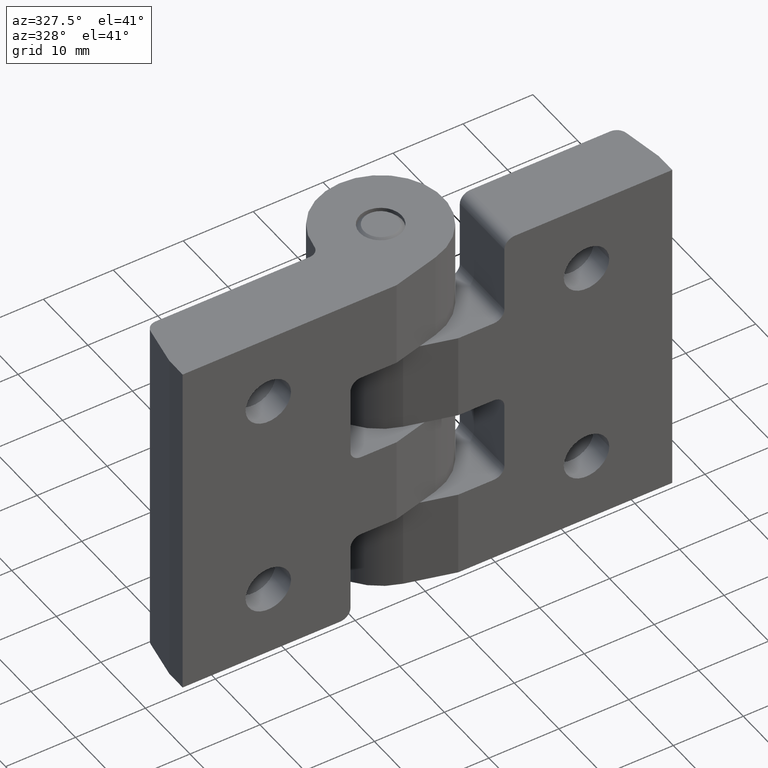
[diagram: clean part render]
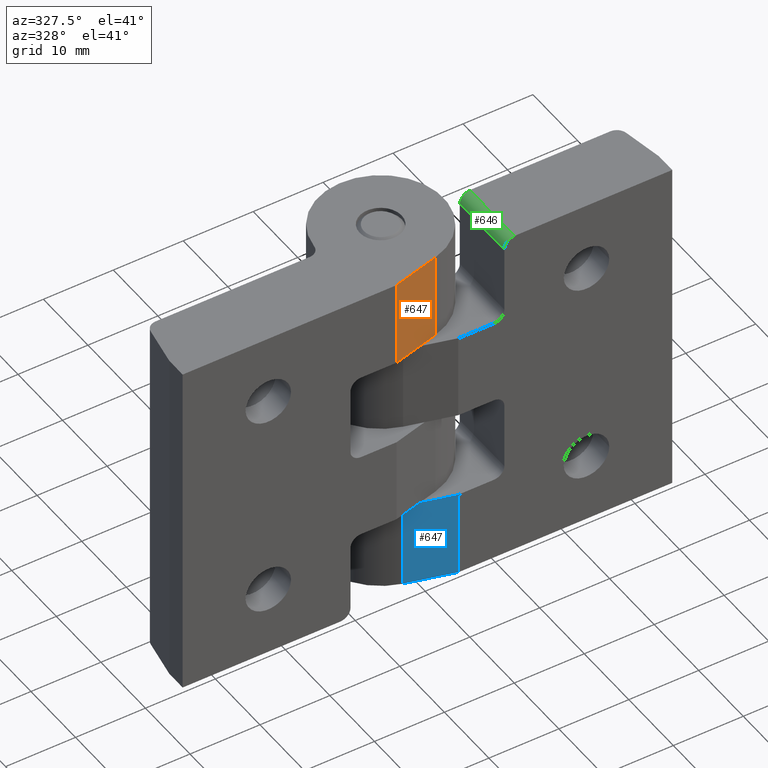
[diagram: same view with three faces highlighted in distinct colors, each labeled with its STEP entity id]
A machine part, auxiliary view with three faces highlighted in distinct colors.
Their STEP definitions:

[orange] entity #647 — the highlighted planar face has unit normal (0.2588, -0.9659, 0).
#44=LINE('',#1079,#92);
#60=LINE('',#1170,#108);
#61=LINE('',#1172,#109);
#62=LINE('',#1173,#110);
#92=VECTOR('',#877,10.);
#108=VECTOR('',#935,10.);
#109=VECTOR('',#936,10.);
#110=VECTOR('',#937,10.);
#175=FACE_OUTER_BOUND('',#215,.T.);
#215=EDGE_LOOP('',(#512,#513,#514,#515));
#297=VERTEX_POINT('',#1071);
#300=VERTEX_POINT('',#1077);
#324=VERTEX_POINT('',#1169);
#325=VERTEX_POINT('',#1171);
#368=EDGE_CURVE('',#297,#300,#44,.T.);
#399=EDGE_CURVE('',#300,#324,#60,.T.);
#400=EDGE_CURVE('',#325,#324,#61,.T.);
#401=EDGE_CURVE('',#297,#325,#62,.T.);
#512=ORIENTED_EDGE('',*,*,#368,.T.);
#513=ORIENTED_EDGE('',*,*,#399,.T.);
#514=ORIENTED_EDGE('',*,*,#400,.F.);
#515=ORIENTED_EDGE('',*,*,#401,.F.);
#620=PLANE('',#777);
#647=ADVANCED_FACE('',(#175),#620,.T.);
#777=AXIS2_PLACEMENT_3D('',#1168,#933,#934);
#877=DIRECTION('',(0.965927000607596,0.25881466244634,0.));
#933=DIRECTION('center_axis',(0.25881466244634,-0.965927000607596,0.));
#934=DIRECTION('ref_axis',(0.965927000607596,0.25881466244634,0.));
#935=DIRECTION('',(0.,0.,1.));
#936=DIRECTION('',(0.965927000607596,0.25881466244634,0.));
#937=DIRECTION('',(0.,0.,1.));
#1071=CARTESIAN_POINT('',(-4.4135432118542,-10.5,12.6));
#1077=CARTESIAN_POINT('',(2.3293174191724,-8.693288729848,12.6));
#1079=CARTESIAN_POINT('',(-5.47393400622916,-10.7841257003218,12.6));
#1168=CARTESIAN_POINT('Origin',(-4.4135432118542,-10.5,0.));
#1169=CARTESIAN_POINT('',(2.3293174191724,-8.693288729848,25.));
#1170=CARTESIAN_POINT('',(2.3293174191724,-8.693288729848,0.));
#1171=CARTESIAN_POINT('',(-4.4135432118542,-10.5,25.));
#1172=CARTESIAN_POINT('',(-4.4135432118542,-10.5,25.));
#1173=CARTESIAN_POINT('',(-4.4135432118542,-10.5,0.));

[blue] entity #647 — the highlighted planar face has unit normal (-0.2588, -0.9659, 0).
#44=LINE('',#1079,#92);
#60=LINE('',#1170,#108);
#61=LINE('',#1172,#109);
#62=LINE('',#1173,#110);
#92=VECTOR('',#877,10.);
#108=VECTOR('',#935,10.);
#109=VECTOR('',#936,10.);
#110=VECTOR('',#937,10.);
#175=FACE_OUTER_BOUND('',#215,.T.);
#215=EDGE_LOOP('',(#512,#513,#514,#515));
#297=VERTEX_POINT('',#1071);
#300=VERTEX_POINT('',#1077);
#324=VERTEX_POINT('',#1169);
#325=VERTEX_POINT('',#1171);
#368=EDGE_CURVE('',#297,#300,#44,.T.);
#399=EDGE_CURVE('',#300,#324,#60,.T.);
#400=EDGE_CURVE('',#325,#324,#61,.T.);
#401=EDGE_CURVE('',#297,#325,#62,.T.);
#512=ORIENTED_EDGE('',*,*,#368,.T.);
#513=ORIENTED_EDGE('',*,*,#399,.T.);
#514=ORIENTED_EDGE('',*,*,#400,.F.);
#515=ORIENTED_EDGE('',*,*,#401,.F.);
#620=PLANE('',#777);
#647=ADVANCED_FACE('',(#175),#620,.T.);
#777=AXIS2_PLACEMENT_3D('',#1168,#933,#934);
#877=DIRECTION('',(0.965927000607596,0.25881466244634,0.));
#933=DIRECTION('center_axis',(0.25881466244634,-0.965927000607596,0.));
#934=DIRECTION('ref_axis',(0.965927000607596,0.25881466244634,0.));
#935=DIRECTION('',(0.,0.,1.));
#936=DIRECTION('',(0.965927000607596,0.25881466244634,0.));
#937=DIRECTION('',(0.,0.,1.));
#1071=CARTESIAN_POINT('',(-4.4135432118542,-10.5,12.6));
#1077=CARTESIAN_POINT('',(2.3293174191724,-8.693288729848,12.6));
#1079=CARTESIAN_POINT('',(-5.47393400622916,-10.7841257003218,12.6));
#1168=CARTESIAN_POINT('Origin',(-4.4135432118542,-10.5,0.));
#1169=CARTESIAN_POINT('',(2.3293174191724,-8.693288729848,25.));
#1170=CARTESIAN_POINT('',(2.3293174191724,-8.693288729848,0.));
#1171=CARTESIAN_POINT('',(-4.4135432118542,-10.5,25.));
#1172=CARTESIAN_POINT('',(-4.4135432118542,-10.5,25.));
#1173=CARTESIAN_POINT('',(-4.4135432118542,-10.5,0.));

[green] entity #646 — the highlighted cylindrical surface (edge-blend (fillet) strip) has radius 1.5 mm, axis along (0, 1, 0).
#57=LINE('',#1160,#105);
#59=LINE('',#1166,#107);
#105=VECTOR('',#924,10.);
#107=VECTOR('',#930,10.);
#141=CYLINDRICAL_SURFACE('',#774,1.49999999999939);
#174=FACE_OUTER_BOUND('',#214,.T.);
#214=EDGE_LOOP('',(#508,#509,#510,#511));
#268=CIRCLE('',#775,1.49999999999939);
#269=CIRCLE('',#776,1.49999999999939);
#320=VERTEX_POINT('',#1157);
#321=VERTEX_POINT('',#1159);
#322=VERTEX_POINT('',#1163);
#323=VERTEX_POINT('',#1165);
#394=EDGE_CURVE('',#320,#321,#57,.T.);
#396=EDGE_CURVE('',#322,#320,#268,.T.);
#397=EDGE_CURVE('',#323,#322,#59,.T.);
#398=EDGE_CURVE('',#321,#323,#269,.T.);
#508=ORIENTED_EDGE('',*,*,#396,.F.);
#509=ORIENTED_EDGE('',*,*,#397,.F.);
#510=ORIENTED_EDGE('',*,*,#398,.F.);
#511=ORIENTED_EDGE('',*,*,#394,.F.);
#646=ADVANCED_FACE('',(#174),#141,.T.);
#774=AXIS2_PLACEMENT_3D('',#1162,#926,#927);
#775=AXIS2_PLACEMENT_3D('',#1164,#928,#929);
#776=AXIS2_PLACEMENT_3D('',#1167,#931,#932);
#924=DIRECTION('',(0.,1.,0.));
#926=DIRECTION('center_axis',(0.,1.,0.));
#927=DIRECTION('ref_axis',(-1.,0.,-4.05601478329889E-13));
#928=DIRECTION('center_axis',(0.,-1.,0.));
#929=DIRECTION('ref_axis',(-1.,0.,-4.05601478329889E-13));
#930=DIRECTION('',(0.,-1.,0.));
#931=DIRECTION('center_axis',(0.,1.,0.));
#932=DIRECTION('ref_axis',(-1.,0.,-4.05601478329889E-13));
#1157=CARTESIAN_POINT('',(-11.,-10.5,-23.501));
#1159=CARTESIAN_POINT('',(-11.,-0.5,-23.501));
#1160=CARTESIAN_POINT('',(-11.,0.,-23.501));
#1162=CARTESIAN_POINT('Origin',(-12.4999999999994,0.,-23.5010000000006));
#1163=CARTESIAN_POINT('',(-12.445236873719,-10.5,-25.));
#1164=CARTESIAN_POINT('Origin',(-12.4999999999994,-10.5,-23.5010000000006));
#1165=CARTESIAN_POINT('',(-12.445236873719,-0.5,-25.));
#1166=CARTESIAN_POINT('',(-12.445236873719,0.,-25.));
#1167=CARTESIAN_POINT('Origin',(-12.4999999999994,-0.5,-23.5010000000006));